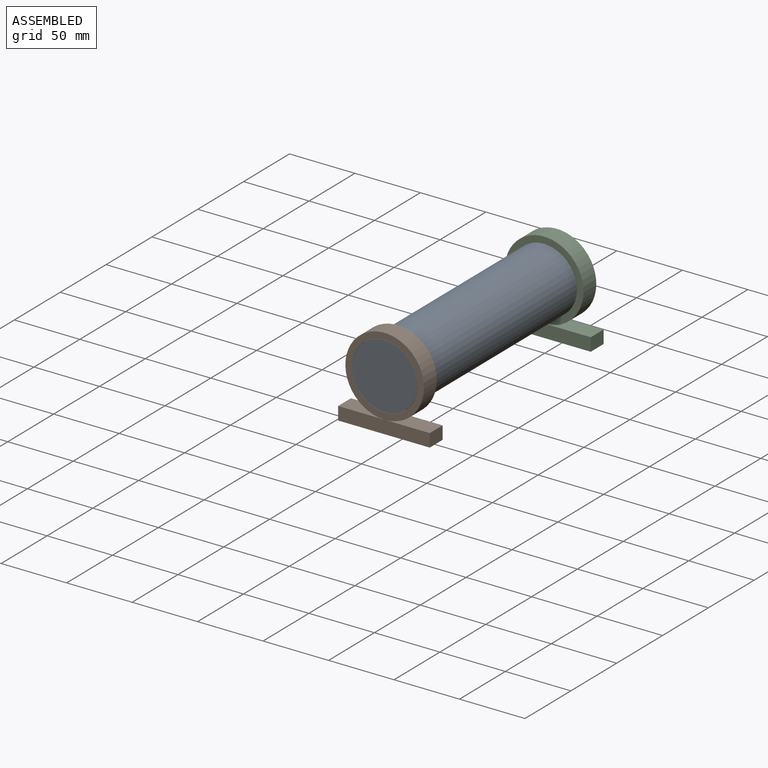
[diagram: assembled view]
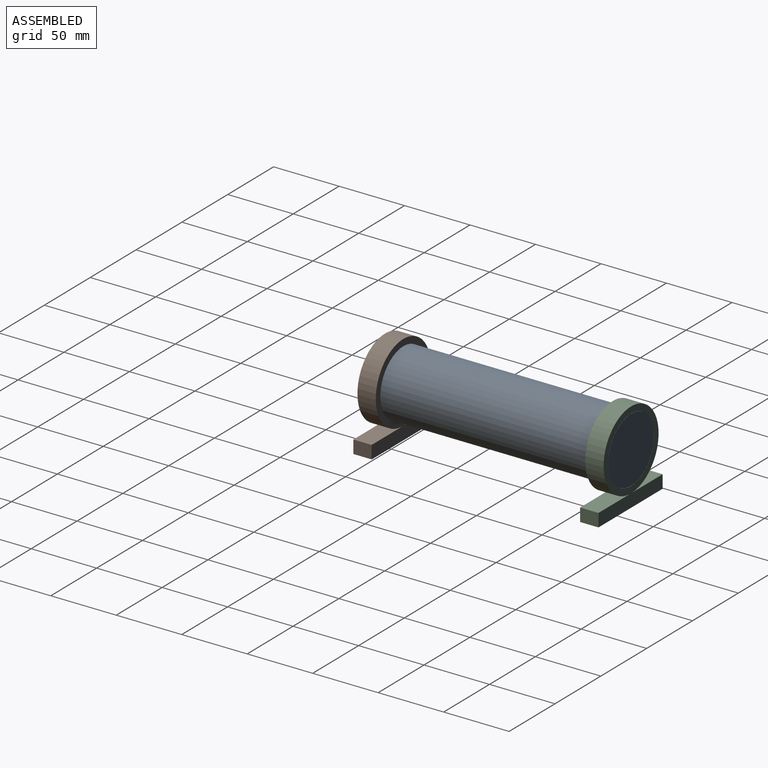
[diagram: assembled view, second angle]
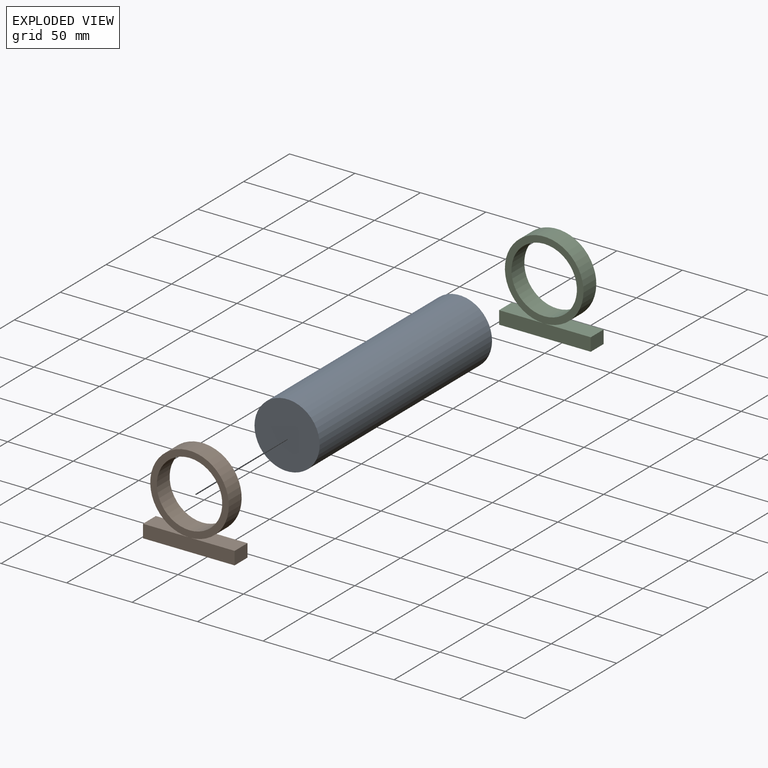
[diagram: exploded view]
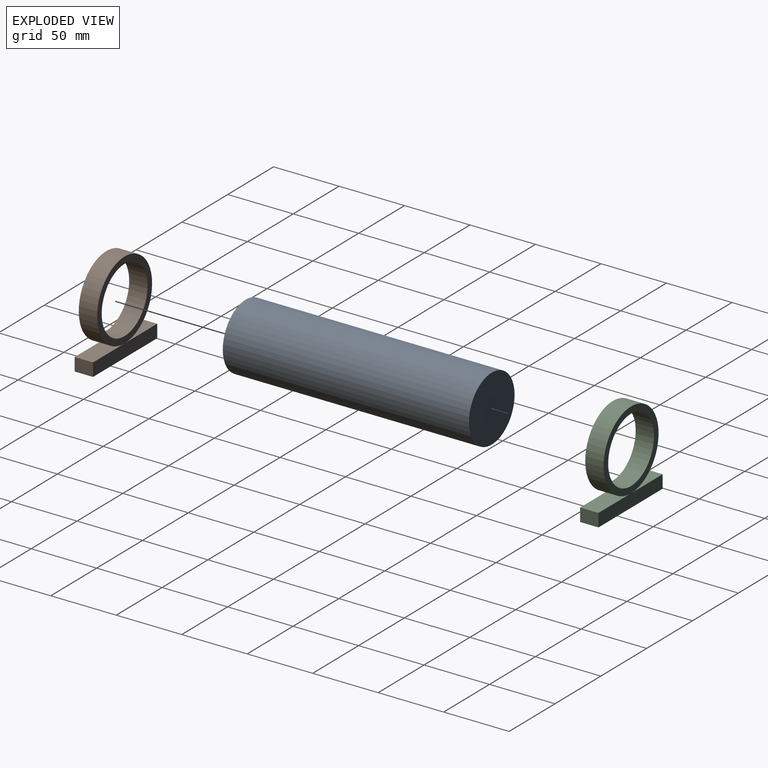
[diagram: exploded view, second angle]
ASSEMBLY  parts=3 mates=2
PART A: 3 faces, bbox 49.8x49.8x188 mm
  f0: cylinder r=24.89mm len=187.96mm, axis (0,0,-1), area 29397.1mm2, adj f1,f2
  f1: plane 49.78x49.78mm, normal (0,0,1), area 1946.6mm2, adj f0
  f2: plane 49.78x49.78mm, normal (0,0,-1), area 1946.6mm2, adj f0
PART B: 9 faces, bbox 70x14x70 mm
  f0: plane 33.89x14mm, normal (0,0,1), area 474.4mm2, adj f1,f5,f7,f8
  f1: cylinder r=30mm len=60mm, axis (0,1,0), area 2623.4mm2, adj f0,f2,f7,f8
  f2: plane 35x14mm, normal (0,0,1), area 490mm2, adj f1,f3,f7,f8
  f3: plane 14x10mm, normal (-1,0,0), area 140mm2, adj f2,f4,f7,f8
  f4: plane 70x14mm, normal (0,0,-1), area 980mm2, adj f3,f5,f7,f8
  f5: plane 14x10mm, normal (1,0,0), area 140mm2, adj f0,f4,f7,f8
  f6: cylinder r=25mm len=50mm, axis (0,1,0), area 2199.1mm2, adj f7,f8
  f7: plane 70x70mm, normal (0,-1,0), area 1563.9mm2, adj f0,f1,f2,f3,f4,f5,f6
  f8: plane 70x70mm, normal (0,1,0), area 1563.9mm2, adj f0,f1,f2,f3,f4,f5,f6
PART C: same geometry as B
PLACE A rot(axis=(-1,0,0),90deg) t=(-9.26,-61.36,83.69)mm
PLACE B t=(-14.35,-47.36,65.27)mm
PLACE C rot(axis=(0,0,1),180deg) t=(-4.17,112.6,65.27)mm
MATE fastened A.f0 <-> C.f1  axis (0,-1,0) through (-9.26,126.6,83.69)mm
MATE fastened A.f0 <-> B.f1  axis (0,-1,0) through (-9.26,-61.36,83.69)mm
